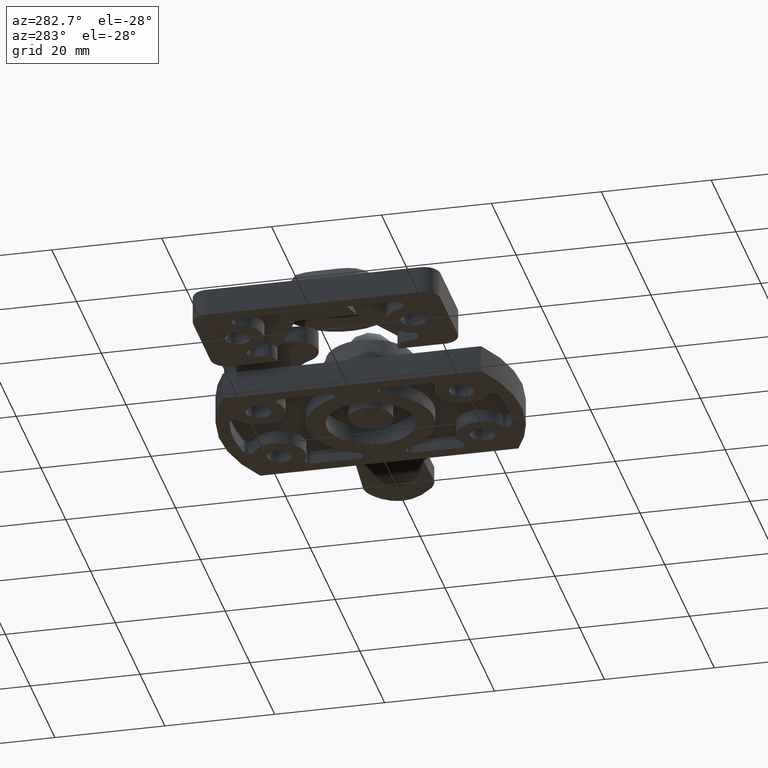
[diagram: clean part render]
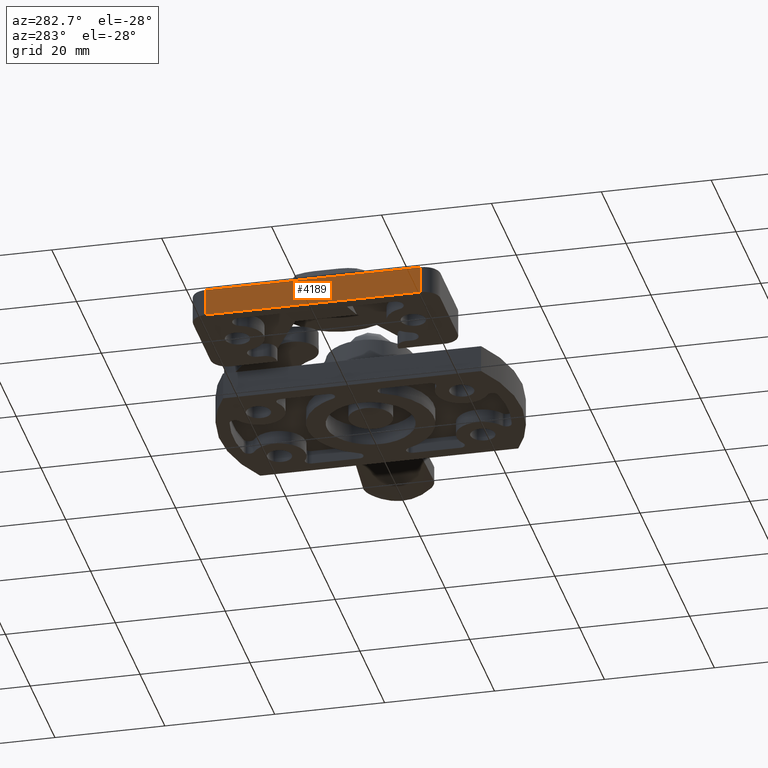
[diagram: same view with one face highlighted and labeled with its STEP entity id]
A machine part, auxiliary view. The second image highlights one B-rep face of the part: STEP entity #4189.
In plain terms, the highlighted face is a freeform B-spline surface patch.
Its self-contained STEP definition (entity closure, byte-faithful):
#4123=CARTESIAN_POINT('',(-46.500000000000000,19.500000000000000,5.000000000000120));
#4124=VERTEX_POINT('',#4123);
#4139=CARTESIAN_POINT('',(-46.500000000000000,19.500000000000000,0.0));
#4140=VERTEX_POINT('',#4139);
#4154=CARTESIAN_POINT('',(-46.500000000000000,19.500000000000000,0.0));
#4155=CARTESIAN_POINT('',(-46.500000000000000,19.500000000000000,5.000000000000120));
#4156=QUASI_UNIFORM_CURVE('',1,(#4154,#4155),.UNSPECIFIED.,.F.,.U.);
#4157=EDGE_CURVE('',#4140,#4124,#4156,.T.);
#4162=CARTESIAN_POINT('',(-46.500000000000000,21.448049924410430,5.249749990309157));
#4163=CARTESIAN_POINT('',(-46.500000000000000,21.448049924410430,-0.249750124419486));
#4164=CARTESIAN_POINT('',(-46.500000000000000,-21.448050970471950,5.249749990309157));
#4165=CARTESIAN_POINT('',(-46.500000000000000,-21.448050970471950,-0.249750124419486));
#4166=B_SPLINE_SURFACE_WITH_KNOTS('',1,1,((#4162,#4164),(#4163,#4165)),.UNSPECIFIED.,.F.,.F.,.U.,(2,2),(2,2),(0.0,5.499500114728643),(0.0,42.896100894882380),.UNSPECIFIED.);
#4167=CARTESIAN_POINT('',(-46.500000000000000,-19.500000000000000,5.000000000000120));
#4168=VERTEX_POINT('',#4167);
#4169=CARTESIAN_POINT('',(-46.500000000000000,-19.500000000000000,5.000000000000120));
#4170=CARTESIAN_POINT('',(-46.500000000000000,19.500000000000000,5.000000000000120));
#4171=QUASI_UNIFORM_CURVE('',1,(#4169,#4170),.UNSPECIFIED.,.F.,.U.);
#4172=EDGE_CURVE('',#4168,#4124,#4171,.T.);
#4173=ORIENTED_EDGE('',*,*,#4172,.T.);
#4174=ORIENTED_EDGE('',*,*,#4157,.F.);
#4175=CARTESIAN_POINT('',(-46.500000000000000,-19.500000000000000,0.0));
#4176=VERTEX_POINT('',#4175);
#4177=CARTESIAN_POINT('',(-46.500000000000000,-19.500000000000000,0.0));
#4178=CARTESIAN_POINT('',(-46.500000000000000,19.500000000000000,0.0));
#4179=QUASI_UNIFORM_CURVE('',1,(#4177,#4178),.UNSPECIFIED.,.F.,.U.);
#4180=EDGE_CURVE('',#4176,#4140,#4179,.T.);
#4181=ORIENTED_EDGE('',*,*,#4180,.F.);
#4182=CARTESIAN_POINT('',(-46.500000000000000,-19.500000000000000,0.0));
#4183=CARTESIAN_POINT('',(-46.500000000000000,-19.500000000000000,5.000000000000120));
#4184=QUASI_UNIFORM_CURVE('',1,(#4182,#4183),.UNSPECIFIED.,.F.,.U.);
#4185=EDGE_CURVE('',#4176,#4168,#4184,.T.);
#4186=ORIENTED_EDGE('',*,*,#4185,.T.);
#4187=EDGE_LOOP('',(#4173,#4174,#4181,#4186));
#4188=FACE_OUTER_BOUND('',#4187,.T.);
#4189=ADVANCED_FACE('',(#4188),#4166,.T.);